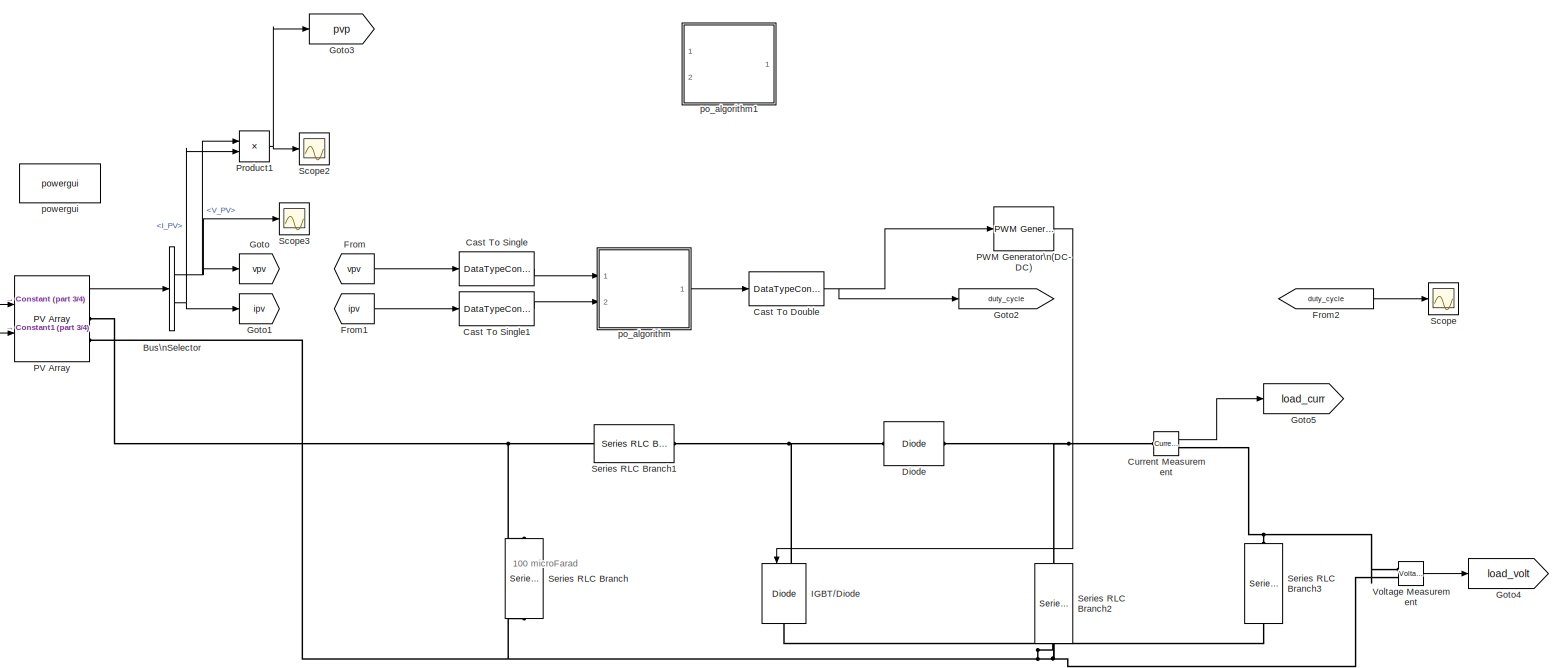
[diagram: root canvas - part 1/4, center side, full height]
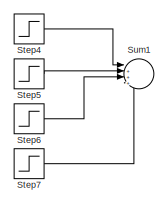
[diagram: root canvas - part 2/4, top left region]
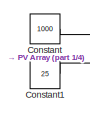
[diagram: root canvas - part 3/4, middle left region]
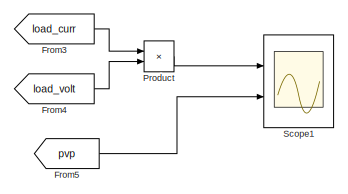
[diagram: root canvas - part 4/4, bottom right region]
MODEL pvarray_mttp_sim
KIND model
BLOCK [BusSelector] Bus\nSelector
  OutputSignals = V_PV,I_PV
  Ports = [1, 2]
  SID = 3
BLOCK [DataTypeConversion] Cast To Double
  OutDataTypeStr = double
  RndMeth = Floor
  SID = 103
  SaturateOnIntegerOverflow = off
BLOCK [DataTypeConversion] Cast To Single
  OutDataTypeStr = single
  RndMeth = Floor
  SID = 80
  SaturateOnIntegerOverflow = off
BLOCK [DataTypeConversion] Cast To Single1
  OutDataTypeStr = single
  RndMeth = Floor
  SID = 81
  SaturateOnIntegerOverflow = off
BLOCK [Constant] Constant
  SID = 135
  Value = 1000
BLOCK [Constant] Constant1
  SID = 11
  Value = 25
BLOCK [Reference] Current Measurement  REF=spsCurrentMeasurementLib/Current Measurement
  OutputType = Complex
  PSBequivalent = 0
  PhasorSimulation = off
  Ports = [0, 1, 0, 0, 0, 1, 1]
  RTWMemSecDataConstants = Inherit from model
  RTWMemSecDataInternal = Inherit from model
  RTWMemSecDataParameters = Inherit from model
  RTWMemSecFuncExecute = Inherit from model
  RTWMemSecFuncInitTerm = Inherit from model
  SID = 24
  SourceBlock = spsCurrentMeasurementLib/Current Measurement
  SourceProductBaseCode = PS
  SourceType = Current Measurement
  UserDataPersistent = on
BLOCK [Reference] Diode  REF=spsDiodeLib/Diode
  Cs = 250e-9
  IC = 0
  Lon = 0
  Measurements = off
  Ports = [0, 0, 0, 0, 0, 1, 1]
  RTWMemSecDataConstants = Inherit from model
  RTWMemSecDataInternal = Inherit from model
  RTWMemSecDataParameters = Inherit from model
  RTWMemSecFuncExecute = Inherit from model
  RTWMemSecFuncInitTerm = Inherit from model
  Ron = 0.001
  Rs = 500
  SID = 18
  SourceBlock = spsDiodeLib/Diode
  SourceProductBaseCode = PS
  SourceType = Diode
  UseSnubber = 0
  Vf = 0.8
BLOCK [From] From
  GotoTag = vpv
  SID = 6
BLOCK [From] From1
  GotoTag = ipv
  SID = 7
BLOCK [From] From2
  GotoTag = duty_cycle
  SID = 13
BLOCK [From] From3
  GotoTag = load_curr
  SID = 34
BLOCK [From] From4
  GotoTag = load_volt
  SID = 35
BLOCK [From] From5
  GotoTag = pvp
  SID = 164
BLOCK [Goto] Goto
  GotoTag = vpv
  SID = 4
BLOCK [Goto] Goto1
  GotoTag = ipv
  SID = 5
BLOCK [Goto] Goto2
  GotoTag = duty_cycle
  SID = 9
BLOCK [Goto] Goto3
  GotoTag = pvp
  SID = 163
BLOCK [Goto] Goto4
  GotoTag = load_volt
  SID = 27
BLOCK [Goto] Goto5
  GotoTag = load_curr
  SID = 28
BLOCK [Reference] IGBT//Diode  REF=spsIGBTDiodeLib/IGBT//Diode
  Cs = inf
  Measurements = off
  NameLocation = left
  Ports = [1, 0, 0, 0, 0, 1, 1]
  RTWMemSecDataConstants = Inherit from model
  RTWMemSecDataInternal = Inherit from model
  RTWMemSecDataParameters = Inherit from model
  RTWMemSecFuncExecute = Inherit from model
  RTWMemSecFuncInitTerm = Inherit from model
  Ron = 1e-3
  Rs = 1e5
  SID = 16
  SourceBlock = spsIGBTDiodeLib/IGBT//Diode
  SourceProductBaseCode = PS
  SourceType = IGBT/Diode
BLOCK [Reference] PV Array  REF=spsPVArrayLib/PV Array
  BAL = on
  I0 = 6.5067e-12
  IL = 6.1461
  Im = 5.76
  Isc = 6.14
  ModuleName = SunPower SPR-315E-WHT-D
  Ncell = 96
  Npar = 64
  Nser = 5
  PlotType = array @ 25 deg.C & specified irradiances
  PlotWhenSelected = off
  Pm = 315.072
  Ports = [2, 1, 0, 0, 0, 0, 2]
  RTWMemSecDataConstants = Inherit from model
  RTWMemSecDataInternal = Inherit from model
  RTWMemSecDataParameters = Inherit from model
  RTWMemSecFuncExecute = Inherit from model
  RTWMemSecFuncInitTerm = Inherit from model
  RobustCellTemperature = 313.3991
  RobustModel = off
  Rs = 0.43041
  Rsh = 430.0666
  SID = 2
  S_vec = [ 200  400  600 1000 ]
  SourceBlock = spsPVArrayLib/PV Array
  SourceProductBaseCode = PS
  SourceType = PV array
  Tc = 1e-6
  Temp_C_vec = [ 25  ]
  Tfilter = 5e-5
  Vm = 54.7
  Voc = 64.6
  alpha_Isc = 0.003791
  alpha_Isc_pc = 0.061743
  beta_Voc = -0.17616
  beta_Voc_pc = -0.2727
  nI = 0.95071
BLOCK [Reference] PWM Generator\n(DC-DC)  REF=spsPWMGeneratorDCDCLib/PWM Generator\n(DC-DC)
  Fsw = 5000
  Ports = [1, 1]
  RTWMemSecDataConstants = Inherit from model
  RTWMemSecDataInternal = Inherit from model
  RTWMemSecDataParameters = Inherit from model
  RTWMemSecFuncExecute = Inherit from model
  RTWMemSecFuncInitTerm = Inherit from model
  SID = 30
  SourceBlock = spsPWMGeneratorDCDCLib/PWM Generator\n(DC-DC)
  SourceProductBaseCode = PS
  SourceType = PWM Generator (DC-DC)
  Ts = 1e-6
BLOCK [Product] Product
  Ports = [2, 1]
  SID = 36
BLOCK [Product] Product1
  Ports = [2, 1]
  SID = 38
BLOCK [Scope] Scope
  Floating = off
  NumInputPorts = 1
  Ports = [1]
  SID = 12
  ScopeSpecificationString = Simulink.scopes.TimeScopeBlockCfg('CurrentConfiguration', extmgr.ConfigurationSet(extmgr.Configuration('Core','General UI',true),extmgr.Configuration('Core','Source UI',true),extmgr.Configuration('Sources','WiredSimulink',true),extmgr.Configuration('Visuals','Time Domain',true,'SerializedDisplays',{struct('MinYLimReal','0.24846','MaxYLimReal','0.82939','YLabelReal','','MinYLimMag','0.24846','MaxYL...<+1523ch>
BLOCK [Scope] Scope1
  Floating = off
  NumInputPorts = 2
  Ports = [2]
  SID = 37
  ScopeSpecificationString = Simulink.scopes.TimeScopeBlockCfg('CurrentConfiguration', extmgr.ConfigurationSet(extmgr.Configuration('Core','General UI',true),extmgr.Configuration('Core','Source UI',true),extmgr.Configuration('Sources','WiredSimulink',true,'DataLoggingVariableName','ScopeData1'),extmgr.Configuration('Visuals','Time Domain',true,'SerializedDisplays',{struct('MinYLimReal','-12570.57799','MaxYLimReal','113135.201...<+2235ch>
BLOCK [Scope] Scope2
  Floating = off
  NumInputPorts = 1
  Ports = [1]
  SID = 39
  ScopeSpecificationString = Simulink.scopes.TimeScopeBlockCfg('CurrentConfiguration', extmgr.ConfigurationSet(extmgr.Configuration('Core','General UI',true),extmgr.Configuration('Core','Source UI',true),extmgr.Configuration('Sources','WiredSimulink',true,'DataLoggingVariableName','ScopeData2'),extmgr.Configuration('Visuals','Time Domain',true,'SerializedDisplays',{struct('MinYLimReal','-26360.62839','MaxYLimReal','117622.707...<+1453ch>
BLOCK [Scope] Scope3
  Floating = off
  NumInputPorts = 1
  Ports = [1]
  SID = 51
  ScopeSpecificationString = Simulink.scopes.TimeScopeBlockCfg('CurrentConfiguration', extmgr.ConfigurationSet(extmgr.Configuration('Core','General UI',true),extmgr.Configuration('Core','Source UI',true),extmgr.Configuration('Sources','WiredSimulink',true,'DataLoggingVariableName','ScopeData1'),extmgr.Configuration('Visuals','Time Domain',true,'SerializedDisplays',{struct('MinYLimReal','268.88737','MaxYLimReal','277.45747','Y...<+1450ch>
BLOCK [Reference] Series RLC Branch  REF=spsSeriesRLCBranchLib/Series RLC Branch
  BranchType = C
  Capacitance = 100e-6
  Inductance = 1e-3
  InitialCurrent = 0
  InitialVoltage = 0
  LConnTagsString = __new0
  Measurements = None
  NameLocation = left
  Ports = [0, 0, 0, 0, 0, 1, 1]
  RConnTagsString = __new0
  Resistance = 1
  SID = 20
  SetiL0 = off
  Setx0 = off
  SourceBlock = spsSeriesRLCBranchLib/Series RLC Branch
  SourceProductBaseCode = PS
  SourceType = Series RLC Branch
BLOCK [Reference] Series RLC Branch1  REF=spsSeriesRLCBranchLib/Series RLC Branch
  BranchType = L
  Capacitance = 100e-6
  Inductance = 5e-3
  InitialCurrent = 0
  InitialVoltage = 0
  LConnTagsString = __new0
  Measurements = None
  NameLocation = top
  Ports = [0, 0, 0, 0, 0, 1, 1]
  RConnTagsString = __new0
  Resistance = 1
  SID = 21
  SetiL0 = off
  Setx0 = off
  SourceBlock = spsSeriesRLCBranchLib/Series RLC Branch
  SourceProductBaseCode = PS
  SourceType = Series RLC Branch
BLOCK [Reference] Series RLC Branch2  REF=spsSeriesRLCBranchLib/Series RLC Branch
  BranchType = RC
  Capacitance = 6000e-6
  Inductance = 3e-3
  InitialCurrent = 0
  InitialVoltage = 0
  LConnTagsString = __new0
  Measurements = None
  NameLocation = left
  Ports = [0, 0, 0, 0, 0, 1, 1]
  RConnTagsString = __new0
  Resistance = 0.001
  SID = 22
  SetiL0 = off
  Setx0 = off
  SourceBlock = spsSeriesRLCBranchLib/Series RLC Branch
  SourceProductBaseCode = PS
  SourceType = Series RLC Branch
BLOCK [Reference] Series RLC Branch3  REF=spsSeriesRLCBranchLib/Series RLC Branch
  BranchType = R
  Capacitance = 100e-6
  Inductance = 3e-3
  InitialCurrent = 0
  InitialVoltage = 0
  LConnTagsString = __new0
  Measurements = None
  NameLocation = right
  Ports = [0, 0, 0, 0, 0, 1, 1]
  RConnTagsString = __new0
  Resistance = 10
  SID = 23
  SetiL0 = off
  Setx0 = off
  SourceBlock = spsSeriesRLCBranchLib/Series RLC Branch
  SourceProductBaseCode = PS
  SourceType = Series RLC Branch
BLOCK [Step] Step4
  After = 200
  Commented = on
  SID = 117
  SampleTime = 0
  Time = 0.5
BLOCK [Step] Step5
  After = 200
  Commented = on
  SID = 118
  SampleTime = 0
  Time = 0.75
BLOCK [Step] Step6
  After = 200
  Commented = on
  SID = 119
  SampleTime = 0
BLOCK [Step] Step7
  After = 400
  Commented = on
  SID = 120
  SampleTime = 0
  Time = 1.5
BLOCK [Sum] Sum1
  Commented = on
  Inputs = |++++
  Ports = [4, 1]
  SID = 134
BLOCK [Reference] Voltage Measurement  REF=spsVoltageMeasurementLib/Voltage Measurement
  OutputType = Complex
  PSBequivalent = 0
  PhasorSimulation = off
  Ports = [0, 1, 0, 0, 0, 2]
  RTWMemSecDataConstants = Inherit from model
  RTWMemSecDataInternal = Inherit from model
  RTWMemSecDataParameters = Inherit from model
  RTWMemSecFuncExecute = Inherit from model
  RTWMemSecFuncInitTerm = Inherit from model
  SID = 25
  SourceBlock = spsVoltageMeasurementLib/Voltage Measurement
  SourceProductBaseCode = PS
  SourceType = Voltage Measurement
  UserDataPersistent = on
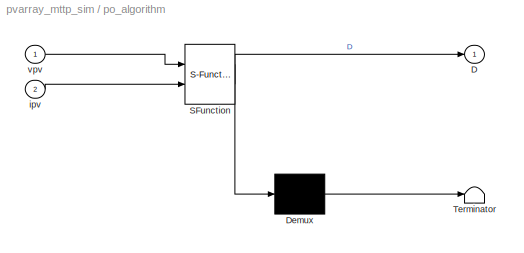
BLOCK [SubSystem] po_algorithm
  ErrorFcn = Stateflow.Translate.translate
  PermitHierarchicalResolution = ExplicitOnly
  Ports = [2, 1]
  RequestExecContextInheritance = off
  SFBlockType = MATLAB Function
  SID = 65
  TreatAsAtomicUnit = on
BLOCK [Demux] po_algorithm/ Demux 
  Outputs = 1
  Ports = [1, 1]
  SID = 65::31
BLOCK [S-Function] po_algorithm/ SFunction 
  EnableBusSupport = on
  FunctionName = sf_sfun
  PortCounts = [2 2]
  Ports = [2, 2]
  SFcnIsStateOwnerBlock = off
  SFunctionDeploymentMode = off
  SID = 65::30
  Tag = Stateflow S-Function 1
BLOCK [Terminator] po_algorithm/ Terminator 
  SID = 65::32
BLOCK [Outport] po_algorithm/D
  SID = 65::5
BLOCK [Inport] po_algorithm/ipv
  Port = 2
  SID = 65::25
BLOCK [Inport] po_algorithm/vpv
  SID = 65::1
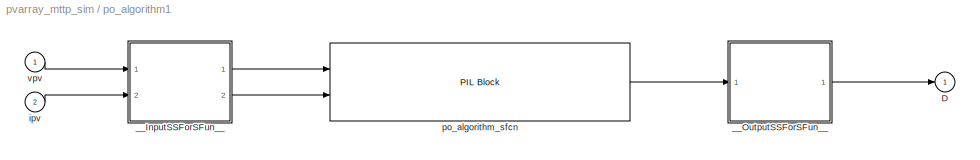
BLOCK [SubSystem] po_algorithm1
  Commented = on
  LoadFcn = try\n   if ~strcmp(rtw.pil.getPILVersion, '9.13 (R2022b)_15')\n      set_param(gcb, 'DialogController', '');\n      set_param(gcb, 'DialogControllerArgs', '');\n   end\ncatch e\n      set_param(gcb, 'DialogController', '');\n      set_param(gcb, 'DialogControllerArgs', '');\nend\n
  Ports = [2, 1]
  RequestExecContextInheritance = off
  SID = 150
BLOCK [Outport] po_algorithm1/D
  SID = 162
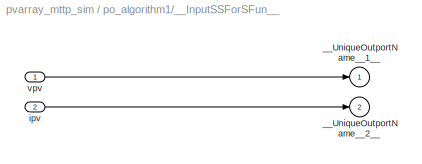
BLOCK [SubSystem] po_algorithm1/__InputSSForSFun__
  PermitHierarchicalResolution = ExplicitOnly
  Ports = [2, 2]
  RequestExecContextInheritance = off
  SID = 153
BLOCK [Outport] po_algorithm1/__InputSSForSFun__/__UniqueOutportName__1__
  SID = 156
BLOCK [Outport] po_algorithm1/__InputSSForSFun__/__UniqueOutportName__2__
  Port = 2
  SID = 157
BLOCK [Inport] po_algorithm1/__InputSSForSFun__/ipv
  Port = 2
  SID = 155
BLOCK [Inport] po_algorithm1/__InputSSForSFun__/vpv
  SID = 154
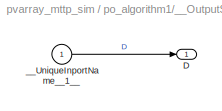
BLOCK [SubSystem] po_algorithm1/__OutputSSForSFun__
  PermitHierarchicalResolution = ExplicitOnly
  Ports = [1, 1]
  RequestExecContextInheritance = off
  SID = 158
BLOCK [Outport] po_algorithm1/__OutputSSForSFun__/D
  SID = 160
BLOCK [Inport] po_algorithm1/__OutputSSForSFun__/__UniqueInportName__1__
  SID = 159
BLOCK [Inport] po_algorithm1/ipv
  Port = 2
  SID = 152
BLOCK [Reference] po_algorithm1/po_algorithm_sfcn  REF=pil_lib/PIL Block
  AnchorDir = <userpath>\\Desktop\\Industrial
  CodeDir = po_algorithm_ert_rtw
  ComponentPath = pvarray_mttp_sim/po_algorithm
  ConfigName = Texas Instruments C2000 Base
  IsTopModelPIL = off
  MaskPortLabels = port_label('input',1,'vpv')\nport_label('input',2,'ipv')\nport_label('output',1,'D')\n
  MultiThreadCoSim = auto
  Ports = [2, 1]
  SID = 161
  SourceBlock = pil_lib/PIL Block
  SourceProductBaseCode = RT
  SourceType = XILBlock
  XrelDWorkNames = {}
  XrelDWorkTypes = {}
  XrelIsReusable = off
  XrelIsTopModelCode = on
  XrelModelArgVals = {}
  XrelOrderedParamNames = {}
BLOCK [Inport] po_algorithm1/vpv
  SID = 151
BLOCK [Reference] powergui  REF=spspowerguiLib/powergui
  AutomaticDiscreteSolvers = off
  ContinueOnMaxIteration = off
  CurrentSourceSwitches = off
  DisableRonSwitches = off
  DisableSnubberDevices = off
  DisableVfSwitches = off
  DisplayEquations = off
  DisplayStyle = 1
  EnableUseOfTLC = off
  ErrMax = 1e-4
  ExternalGateDelay = off
  Frange = [0:2:500]
  FreqAxis = off
  FunctionMessages = off
  HookPort = off
  Interpol = off
  Iterations = 50
  MaxFrequency = 1000
  NonlinearTolerance = 1e-4
  Pbase = 100e6
  Ports = []
  Priority = 1
  RTWMemSecDataConstants = Inherit from model
  RTWMemSecDataInternal = Inherit from model
  RTWMemSecDataParameters = Inherit from model
  RTWMemSecFuncExecute = Inherit from model
  RTWMemSecFuncInitTerm = Inherit from model
  ResistiveCurrentMeasurement = off
  RestoreLinks = warning
  RmsSteady = 1
  SID = 1
  SPID = on
  SampleTime = 1e-6
  ShowGrid = off
  SolverType = Tustin/Backward Euler (TBE)
  SourceBlock = spspowerguiLib/powergui
  SourceProductBaseCode = PS
  SourceType = PSB option menu block
  StartTime = 0.0
  SwTol = 0
  Ts = 100
  UnitsV = kV
  UnitsW = MW
  Xlog = on
  Ylog = off
  ZoomFFT = off
  buscounter = 0
  cycles = 1
  display = off
  echomessages = off
  frequency = 60
  frequencyindice = 0
  frequencyindicesteady = 1
  fundamental = 60
  methode = off
  nMaxIteration = 100
  save = off
  structure = 0
  variable = ZData
  x0status = blocks
ANNOTATION (root): 100 microFarad\n
NET Bus\nSelector:1 -> Goto:1, Product1:1, Scope3:1
NET Bus\nSelector:2 -> Goto1:1, Product1:2
NET Cast To Double:1 -> Goto2:1, PWM Generator\n(DC-DC):1
LINE Cast To Single1:1 -> po_algorithm:2
LINE Cast To Single:1 -> po_algorithm:1
LINE Constant1:1 -> PV Array:2
LINE Constant:1 -> PV Array:1
LINE Current Measurement:1 -> Goto5:1
LINE From1:1 -> Cast To Single1:1
LINE From2:1 -> Scope:1
LINE From3:1 -> Product:1
LINE From4:1 -> Product:2
LINE From5:1 -> Scope1:2
LINE From:1 -> Cast To Single:1
LINE PV Array:1 -> Bus\nSelector:1
LINE PWM Generator\n(DC-DC):1 -> IGBT//Diode:1
NET Product1:1 -> Goto3:1, Scope2:1
LINE Product:1 -> Scope1:1
LINE Step4:1 -> Sum1:1
LINE Step5:1 -> Sum1:2
LINE Step6:1 -> Sum1:3
LINE Step7:1 -> Sum1:4
LINE Voltage Measurement:1 -> Goto4:1
LINE po_algorithm/ Demux :1 -> po_algorithm/ Terminator :1
LINE po_algorithm/ SFunction :1 -> po_algorithm/ Demux :1
LINE po_algorithm/ SFunction :2 -> po_algorithm/D:1
LINE po_algorithm/ipv:1 -> po_algorithm/ SFunction :2
LINE po_algorithm/vpv:1 -> po_algorithm/ SFunction :1
LINE po_algorithm1/__InputSSForSFun__/ipv:1 -> po_algorithm1/__InputSSForSFun__/__UniqueOutportName__2__:1
LINE po_algorithm1/__InputSSForSFun__/vpv:1 -> po_algorithm1/__InputSSForSFun__/__UniqueOutportName__1__:1
LINE po_algorithm1/__InputSSForSFun__:1 -> po_algorithm1/po_algorithm_sfcn:1
LINE po_algorithm1/__InputSSForSFun__:2 -> po_algorithm1/po_algorithm_sfcn:2
LINE po_algorithm1/__OutputSSForSFun__/__UniqueInportName__1__:1 -> po_algorithm1/__OutputSSForSFun__/D:1
LINE po_algorithm1/__OutputSSForSFun__:1 -> po_algorithm1/D:1
LINE po_algorithm1/ipv:1 -> po_algorithm1/__InputSSForSFun__:2
LINE po_algorithm1/po_algorithm_sfcn:1 -> po_algorithm1/__OutputSSForSFun__:1
LINE po_algorithm1/vpv:1 -> po_algorithm1/__InputSSForSFun__:1
LINE po_algorithm:1 -> Cast To Double:1
PNET net1: Current Measurement:LConn1 -- Diode:RConn1 -- Series RLC Branch2:LConn1
PNET net2: Current Measurement:RConn1 -- Series RLC Branch3:RConn1 -- Voltage Measurement:LConn1
PNET net3: Diode:LConn1 -- IGBT//Diode:LConn1 -- Series RLC Branch1:LConn1
PNET net4: IGBT//Diode:RConn1 -- PV Array:RConn2 -- Series RLC Branch2:RConn1 -- Series RLC Branch3:LConn1 -- Series RLC Branch:RConn1 -- Voltage Measurement:LConn2
PNET net5: PV Array:RConn1 -- Series RLC Branch1:RConn1 -- Series RLC Branch:LConn1
note: NET lines group one-source signal fan-out (src -> all destinations, sorted); 1:1 wires keep LINE; PNET lines group multi-terminal physical nets as a canonical sorted terminal list (undirected conserving connections); 2-terminal nets keep the pairwise PLINE form
CHART po_algorithm states=1 transitions=1
  STATE_LABEL 'eML_blk_kernel()'
